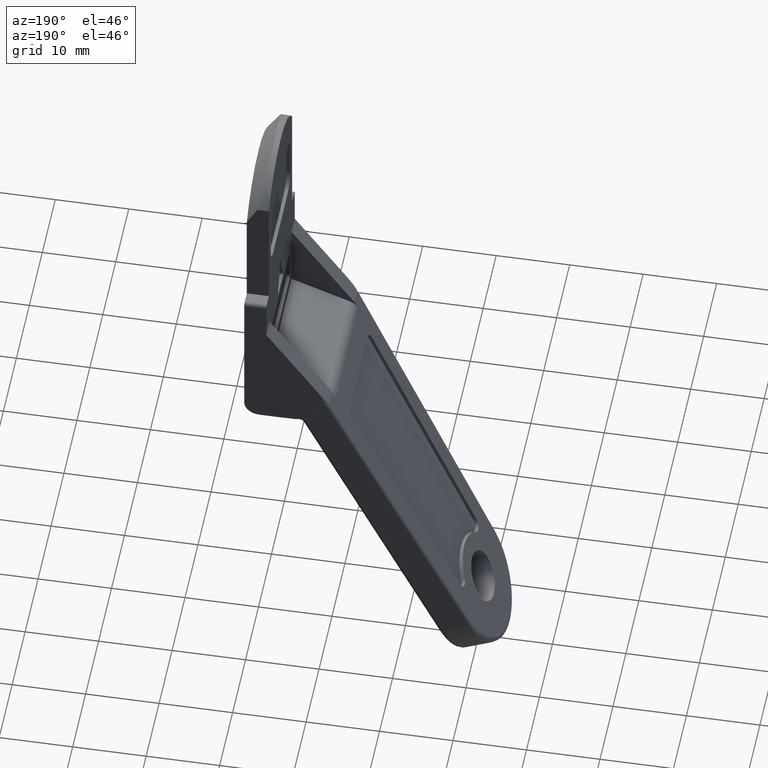
[diagram: clean part render]
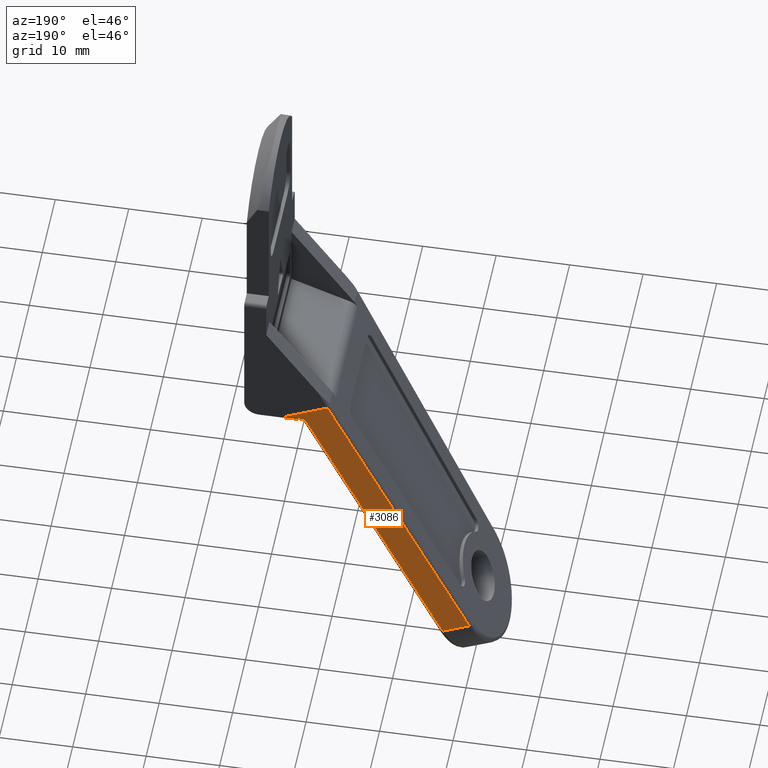
[diagram: same view with one face highlighted and labeled with its STEP entity id]
A machine part, auxiliary view. The second image highlights one B-rep face of the part: STEP entity #3086.
In plain terms, the highlighted face is a freeform B-spline surface patch.
Its self-contained STEP definition (entity closure, byte-faithful):
#435=CARTESIAN_POINT('',(-11.321809880560160,10.999499256270340,-28.064427606698501));
#436=VERTEX_POINT('',#435);
#557=CARTESIAN_POINT('',(-5.026454512236670,10.999499256270241,-31.0));
#558=VERTEX_POINT('',#557);
#574=CARTESIAN_POINT('',(-11.321809880560160,10.999499256270340,-28.064427606698501));
#575=CARTESIAN_POINT('',(-5.026454512236670,10.999499256270241,-31.0));
#576=QUASI_UNIFORM_CURVE('',1,(#574,#575),.UNSPECIFIED.,.F.,.U.);
#577=EDGE_CURVE('',#436,#558,#576,.T.);
#647=CARTESIAN_POINT('',(-30.273968254651351,8.990986612866081,-68.707462490222298));
#648=VERTEX_POINT('',#647);
#758=CARTESIAN_POINT('',(-30.273968254651351,8.990986612866081,-68.707462490222298));
#759=CARTESIAN_POINT('',(-11.321809880560160,10.999499256270340,-28.064427606698501));
#760=QUASI_UNIFORM_CURVE('',1,(#758,#759),.UNSPECIFIED.,.F.,.U.);
#761=EDGE_CURVE('',#648,#436,#760,.T.);
#933=CARTESIAN_POINT('',(-26.648737184194449,8.990986612866081,-70.397935486126698));
#934=VERTEX_POINT('',#933);
#998=CARTESIAN_POINT('',(-8.457335651273631,10.918875745834820,-31.386348662745650));
#999=VERTEX_POINT('',#998);
#1017=CARTESIAN_POINT('',(-8.457335651273631,10.918875745834820,-31.386348662745650));
#1018=CARTESIAN_POINT('',(-26.648737184194449,8.990986612866081,-70.397935486126698));
#1019=QUASI_UNIFORM_CURVE('',1,(#1017,#1018),.UNSPECIFIED.,.F.,.U.);
#1020=EDGE_CURVE('',#999,#934,#1019,.T.);
#1051=CARTESIAN_POINT('',(-7.088418999999910,10.960469702206201,-31.0));
#1052=VERTEX_POINT('',#1051);
#1053=CARTESIAN_POINT('',(-7.088418999999910,10.960469702206201,-31.0));
#1054=CARTESIAN_POINT('',(-7.425487723710988,10.962564155157070,-30.791224526419970));
#1055=CARTESIAN_POINT('',(-7.814633388035785,10.951627925202050,-30.879181645388691));
#1056=CARTESIAN_POINT('',(-8.268350323634820,10.938877037303021,-30.981733563966088));
#1057=CARTESIAN_POINT('',(-8.457335651273631,10.918875745834820,-31.386348662745650));
#1058=B_SPLINE_CURVE_WITH_KNOTS('',2,(#1053,#1054,#1055,#1056,#1057),.UNSPECIFIED.,.F.,.U.,(3,2,3),(0.0,0.500000000000000,1.0),.UNSPECIFIED.);
#1059=EDGE_CURVE('',#1052,#999,#1058,.T.);
#3065=CARTESIAN_POINT('',(-31.535081043139190,8.812790591289573,-72.509331450453018));
#3066=CARTESIAN_POINT('',(-31.535081043139190,10.703382874666410,-25.933778758505959));
#3067=CARTESIAN_POINT('',(-3.765340595097015,9.337560867229978,-72.530632896746127));
#3068=CARTESIAN_POINT('',(-3.765340595097015,11.228153150606810,-25.955080204799049));
#3069=B_SPLINE_SURFACE_WITH_KNOTS('',1,1,((#3065,#3067),(#3066,#3068)),.UNSPECIFIED.,.F.,.F.,.U.,(2,2),(2,2),(0.0,46.613908307953572),(0.0,27.774706517724979),.UNSPECIFIED.);
#3070=ORIENTED_EDGE('',*,*,#761,.T.);
#3071=ORIENTED_EDGE('',*,*,#577,.T.);
#3072=CARTESIAN_POINT('',(-5.026454512236670,10.999499256270241,-31.0));
#3073=CARTESIAN_POINT('',(-7.088418999999910,10.960469702206201,-31.0));
#3074=QUASI_UNIFORM_CURVE('',1,(#3072,#3073),.UNSPECIFIED.,.F.,.U.);
#3075=EDGE_CURVE('',#558,#1052,#3074,.T.);
#3076=ORIENTED_EDGE('',*,*,#3075,.T.);
#3077=ORIENTED_EDGE('',*,*,#1059,.T.);
#3078=ORIENTED_EDGE('',*,*,#1020,.T.);
#3079=CARTESIAN_POINT('',(-26.648737184194449,8.990986612866081,-70.397935486126698));
#3080=CARTESIAN_POINT('',(-30.273968254651351,8.990986612866081,-68.707462490222298));
#3081=QUASI_UNIFORM_CURVE('',1,(#3079,#3080),.UNSPECIFIED.,.F.,.U.);
#3082=EDGE_CURVE('',#934,#648,#3081,.T.);
#3083=ORIENTED_EDGE('',*,*,#3082,.T.);
#3084=EDGE_LOOP('',(#3070,#3071,#3076,#3077,#3078,#3083));
#3085=FACE_OUTER_BOUND('',#3084,.T.);
#3086=ADVANCED_FACE('',(#3085),#3069,.T.);